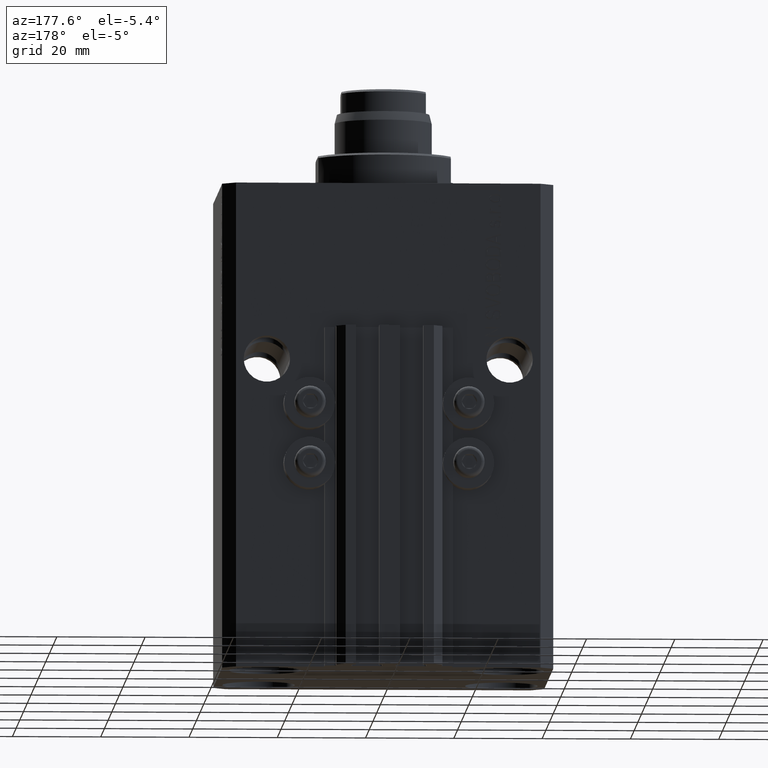
[diagram: clean part render]
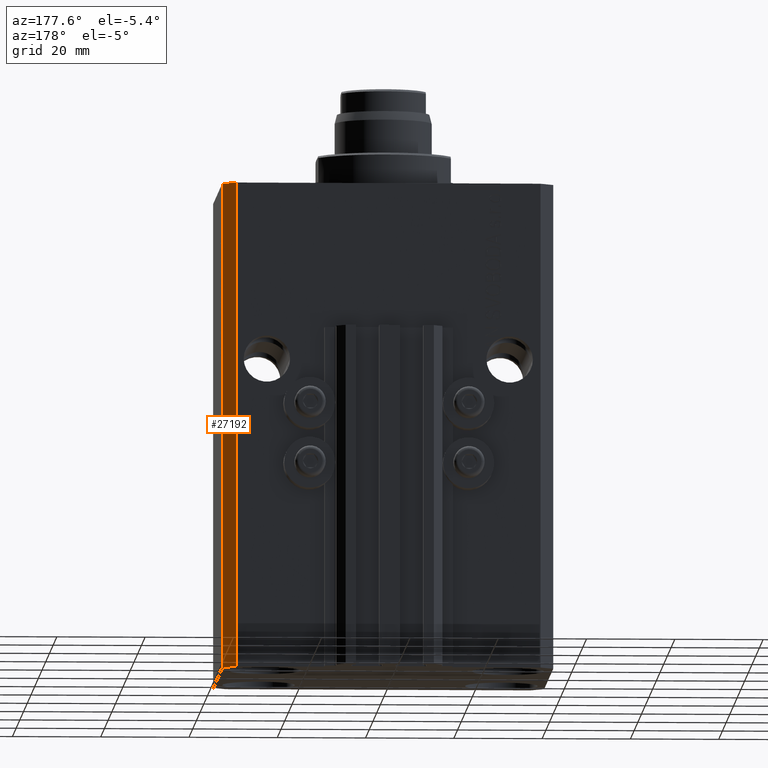
[diagram: same view with one face highlighted and labeled with its STEP entity id]
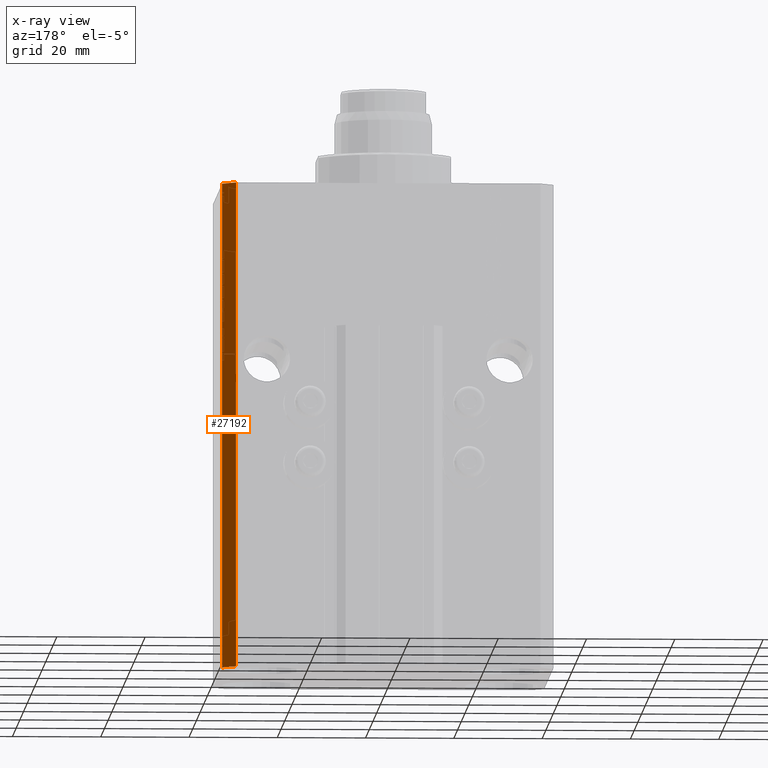
[diagram: x-ray of the same camera — body ghosted, the highlighted face saturated]
A machine part, auxiliary view. The second image highlights one B-rep face of the part: STEP entity #27192.
The next image is the same camera in x-ray: the body ghosted, the highlighted face saturated — about 0% of this face is hidden behind the body in this view.
In plain terms, the highlighted planar face has unit normal (0.7071, 0.7071, 0).
Its self-contained STEP definition (entity closure, byte-faithful):
#1059 = ORIENTED_EDGE ( 'NONE', *, *, #11170, .F. ) ;
#1455 = EDGE_CURVE ( 'NONE', #36678, #26209, #15612, .T. ) ;
#2159 = VECTOR ( 'NONE', #36866, 1000.000000000000000 ) ;
#3024 = ORIENTED_EDGE ( 'NONE', *, *, #43912, .T. ) ;
#5653 = CARTESIAN_POINT ( 'NONE',  ( 37.50000000000051870, 24.49999999999995381, -110.0000000000000000 ) ) ;
#5734 = CARTESIAN_POINT ( 'NONE',  ( 34.50000000000056843, 27.50000000000000000, -110.0000000000000000 ) ) ;
#6323 = ORIENTED_EDGE ( 'NONE', *, *, #22802, .F. ) ;
#6500 = VECTOR ( 'NONE', #34796, 1000.000000000000114 ) ;
#9767 = LINE ( 'NONE', #13039, #6500 ) ;
#10132 = VERTEX_POINT ( 'NONE', #41866 ) ;
#10899 = CARTESIAN_POINT ( 'NONE',  ( 37.50000000000051870, 24.49999999999995381, 0.000000000000000000 ) ) ;
#11170 = EDGE_CURVE ( 'NONE', #41215, #10132, #9767, .T. ) ;
#13039 = CARTESIAN_POINT ( 'NONE',  ( 37.50000000000051870, 24.49999999999995381, 0.000000000000000000 ) ) ;
#13713 = DIRECTION ( 'NONE',  ( -0.7071067811865356934, 0.7071067811865594521, 0.000000000000000000 ) ) ;
#15612 = LINE ( 'NONE', #26381, #21206 ) ;
#17394 = AXIS2_PLACEMENT_3D ( 'NONE', #24708, #31514, #13713 ) ;
#18618 = LINE ( 'NONE', #33605, #2159 ) ;
#18868 = EDGE_LOOP ( 'NONE', ( #1059, #6323, #25648, #3024 ) ) ;
#21206 = VECTOR ( 'NONE', #29209, 1000.000000000000114 ) ;
#22802 = EDGE_CURVE ( 'NONE', #36678, #41215, #37015, .T. ) ;
#23172 = VECTOR ( 'NONE', #34208, 1000.000000000000000 ) ;
#24708 = CARTESIAN_POINT ( 'NONE',  ( 37.50000000000051870, 24.49999999999995381, -110.0000000000000000 ) ) ;
#25648 = ORIENTED_EDGE ( 'NONE', *, *, #1455, .T. ) ;
#26209 = VERTEX_POINT ( 'NONE', #5734 ) ;
#26381 = CARTESIAN_POINT ( 'NONE',  ( 37.50000000000051870, 24.49999999999995381, -110.0000000000000000 ) ) ;
#27192 = ADVANCED_FACE ( 'NONE', ( #38295 ), #27305, .T. ) ;
#27282 = CARTESIAN_POINT ( 'NONE',  ( 37.50000000000051870, 24.49999999999995381, -110.0000000000000000 ) ) ;
#27305 = PLANE ( 'NONE',  #17394 ) ;
#29209 = DIRECTION ( 'NONE',  ( -0.7071067811865356934, 0.7071067811865594521, 0.000000000000000000 ) ) ;
#31514 = DIRECTION ( 'NONE',  ( 0.7071067811865594521, 0.7071067811865356934, -0.000000000000000000 ) ) ;
#33605 = CARTESIAN_POINT ( 'NONE',  ( 34.50000000000056843, 27.50000000000000000, -110.0000000000000000 ) ) ;
#34208 = DIRECTION ( 'NONE',  ( 0.000000000000000000, 0.000000000000000000, 1.000000000000000000 ) ) ;
#34796 = DIRECTION ( 'NONE',  ( -0.7071067811865356934, 0.7071067811865594521, 0.000000000000000000 ) ) ;
#36678 = VERTEX_POINT ( 'NONE', #27282 ) ;
#36866 = DIRECTION ( 'NONE',  ( 0.000000000000000000, 0.000000000000000000, 1.000000000000000000 ) ) ;
#37015 = LINE ( 'NONE', #5653, #23172 ) ;
#38295 = FACE_OUTER_BOUND ( 'NONE', #18868, .T. ) ;
#41215 = VERTEX_POINT ( 'NONE', #10899 ) ;
#41866 = CARTESIAN_POINT ( 'NONE',  ( 34.50000000000056843, 27.50000000000000000, 0.000000000000000000 ) ) ;
#43912 = EDGE_CURVE ( 'NONE', #26209, #10132, #18618, .T. ) ;